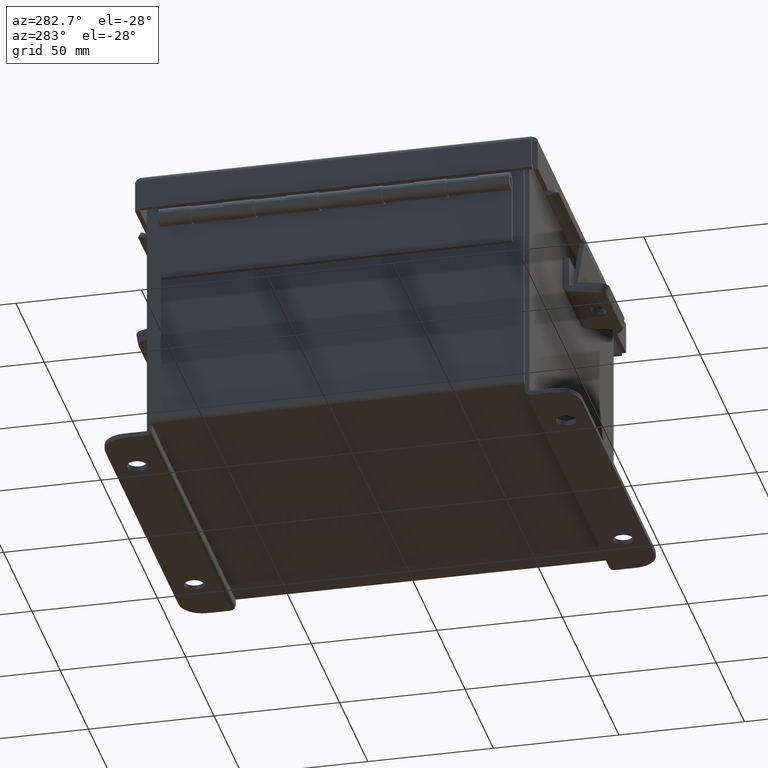
[diagram: clean part render]
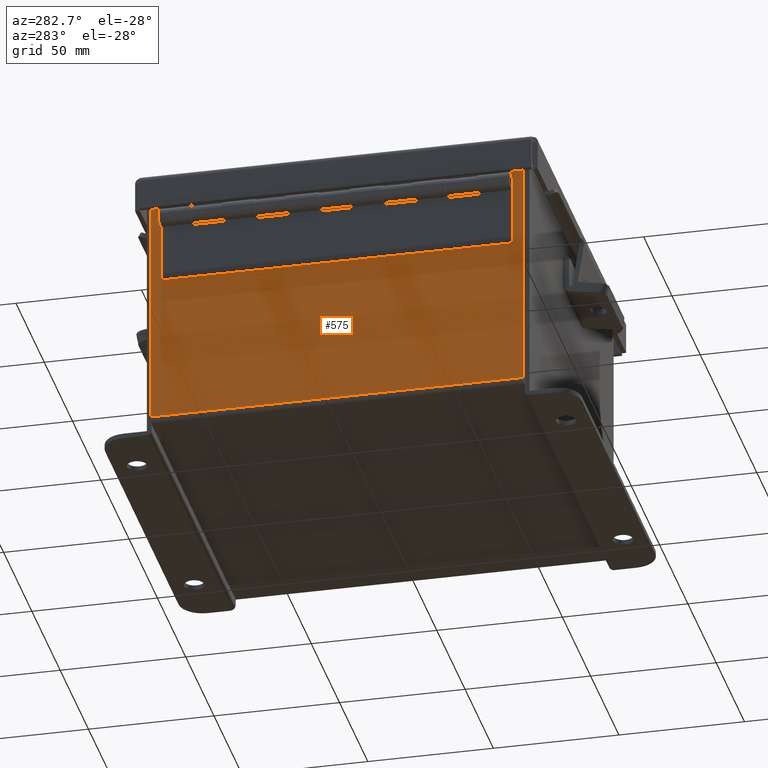
[diagram: same view with one face highlighted and labeled with its STEP entity id]
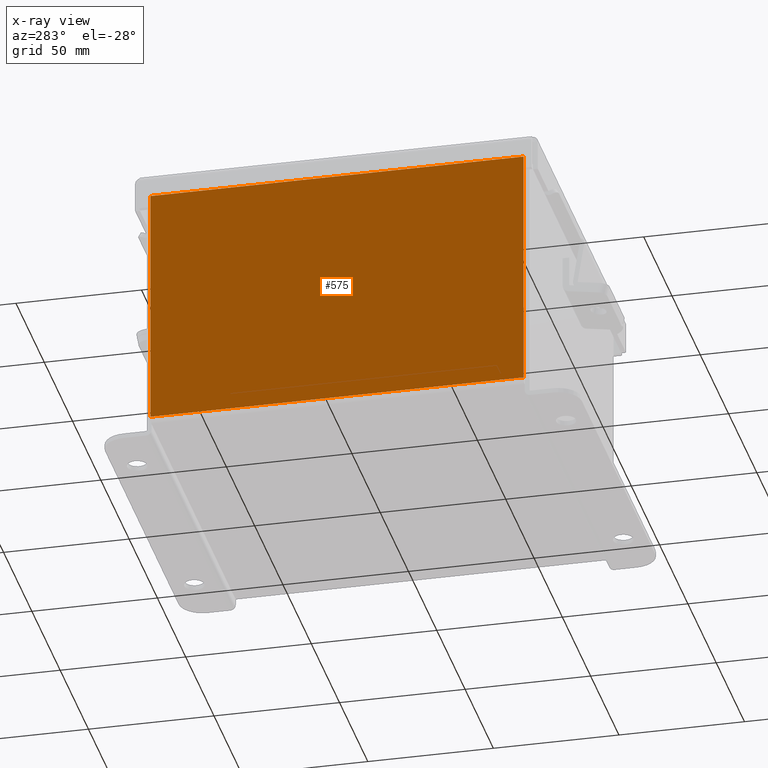
[diagram: x-ray of the same camera — body ghosted, the highlighted face saturated]
A machine part, auxiliary view. The second image highlights one B-rep face of the part: STEP entity #575.
The next image is the same camera in x-ray: the body ghosted, the highlighted face saturated — about 0% of this face is hidden behind the body in this view.
In plain terms, the highlighted planar face has unit normal (1, 0, 0).
Its self-contained STEP definition (entity closure, byte-faithful):
#575 = ADVANCED_FACE ( 'NONE', ( #13471 ), #12032, .F. ) ;
#707 = VECTOR ( 'NONE', #5160, 39.37007874015748100 ) ;
#987 = CARTESIAN_POINT ( 'NONE',  ( -2.999999999999999100, 2.925300000000000500, 0.01299999999999987600 ) ) ;
#1588 = ORIENTED_EDGE ( 'NONE', *, *, #2396, .F. ) ;
#1775 = ORIENTED_EDGE ( 'NONE', *, *, #12146, .T. ) ;
#2396 = EDGE_CURVE ( 'NONE', #3569, #6614, #5355, .T. ) ;
#2548 = AXIS2_PLACEMENT_3D ( 'NONE', #6452, #2570, #9507 ) ;
#2570 = DIRECTION ( 'NONE',  ( 1.000000000000000000, 0.0000000000000000000, 3.547301710985643000E-015 ) ) ;
#3569 = VERTEX_POINT ( 'NONE', #4741 ) ;
#3618 = LINE ( 'NONE', #8440, #707 ) ;
#4662 = EDGE_CURVE ( 'NONE', #6260, #6614, #14181, .T. ) ;
#4741 = CARTESIAN_POINT ( 'NONE',  ( -2.999999999999999100, -2.925299999999999100, 0.01300000000000039000 ) ) ;
#4788 = VECTOR ( 'NONE', #10964, 39.37007874015748100 ) ;
#4792 = CARTESIAN_POINT ( 'NONE',  ( -3.000000000000012900, 2.925300000000000500, 3.837600000000000100 ) ) ;
#5160 = DIRECTION ( 'NONE',  ( 0.0000000000000000000, 1.000000000000000000, 0.0000000000000000000 ) ) ;
#5355 = LINE ( 'NONE', #10918, #5715 ) ;
#5372 = EDGE_LOOP ( 'NONE', ( #10996, #9924, #1588, #1775 ) ) ;
#5411 = VECTOR ( 'NONE', #10956, 39.37007874015748100 ) ;
#5715 = VECTOR ( 'NONE', #13133, 39.37007874015748100 ) ;
#6260 = VERTEX_POINT ( 'NONE', #4792 ) ;
#6452 = CARTESIAN_POINT ( 'NONE',  ( -2.999999999999999100, 0.0000000000000000000, -1.090178089971645100E-014 ) ) ;
#6614 = VERTEX_POINT ( 'NONE', #987 ) ;
#7636 = CARTESIAN_POINT ( 'NONE',  ( -2.999999999999999100, 2.925300000000000500, -1.090178089971645100E-014 ) ) ;
#8064 = LINE ( 'NONE', #8817, #4788 ) ;
#8440 = CARTESIAN_POINT ( 'NONE',  ( -3.000000000000012900, -2.925299999999998200, 3.837600000000000100 ) ) ;
#8817 = CARTESIAN_POINT ( 'NONE',  ( -2.999999999999999100, -2.925299999999999600, -1.007368947663697100E-014 ) ) ;
#9507 = DIRECTION ( 'NONE',  ( 3.547301710985643000E-015, 0.0000000000000000000, -1.000000000000000000 ) ) ;
#9648 = VERTEX_POINT ( 'NONE', #13550 ) ;
#9924 = ORIENTED_EDGE ( 'NONE', *, *, #4662, .T. ) ;
#10918 = CARTESIAN_POINT ( 'NONE',  ( -2.999999999999999100, 2.925300000000000500, 0.01299999999999984300 ) ) ;
#10956 = DIRECTION ( 'NONE',  ( 3.547301710985643000E-015, 0.0000000000000000000, -1.000000000000000000 ) ) ;
#10962 = EDGE_CURVE ( 'NONE', #9648, #6260, #3618, .T. ) ;
#10964 = DIRECTION ( 'NONE',  ( -3.547301710985643000E-015, 2.837841368788514100E-016, 1.000000000000000000 ) ) ;
#10996 = ORIENTED_EDGE ( 'NONE', *, *, #10962, .T. ) ;
#12032 = PLANE ( 'NONE',  #2548 ) ;
#12146 = EDGE_CURVE ( 'NONE', #3569, #9648, #8064, .T. ) ;
#13133 = DIRECTION ( 'NONE',  ( 3.312716323822492500E-031, 1.000000000000000000, -9.338693445678268600E-017 ) ) ;
#13471 = FACE_OUTER_BOUND ( 'NONE', #5372, .T. ) ;
#13550 = CARTESIAN_POINT ( 'NONE',  ( -3.000000000000012900, -2.925299999999997300, 3.837600000000000100 ) ) ;
#14181 = LINE ( 'NONE', #7636, #5411 ) ;